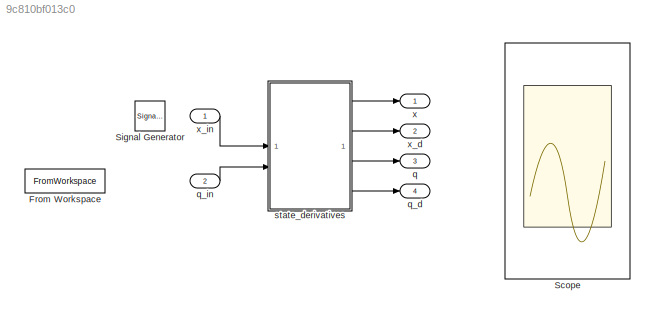
MODEL slx_9c810bf013c0
KIND model
CONFIG AbsTol = auto
CONFIG EnableMultiTasking = off
CONFIG FixedStep = 0.001
CONFIG MaxStep = auto
CONFIG MinStep = auto
CONFIG RelTol = 1e-3
CONFIG SampleTimeConstraint = Unconstrained
CONFIG SolverName = FixedStepDiscrete
CONFIG StartTime = 0.0
CONFIG StopTime = 30
BLOCK [FromWorkspace] From Workspace
  Commented = on
  OutputAfterFinalValue = Holding final value
  SampleTime = 0.001
  VariableName = data_to_simulink
BLOCK [Scope] Scope
  Commented = on
  Floating = off
  NumInputPorts = 4
  ScopeSpecificationString = Simulink.scopes.TimeScopeBlockCfg('CurrentConfiguration', extmgr.ConfigurationSet(extmgr.Configuration('Core','General UI',true,'FigureColor',[1 1 1]),extmgr.Configuration('Core','Source UI',true),extmgr.Configuration('Sources','WiredSimulink',true),extmgr.Configuration('Visuals','Time Domain',true,'SerializedDisplays',{struct('MinYLimReal','-1.125','MaxYLimReal','1.125','YLabelReal','','MinYLimMa...<+3740ch>
BLOCK [SignalGenerator] Signal Generator
  Amplitude = 0.9
  Commented = on
  Frequency = pi
  Units = rad/sec
BLOCK [Outport] q
  Port = 3
BLOCK [Outport] q_d
  Port = 4
BLOCK [Inport] q_in
  Port = 2
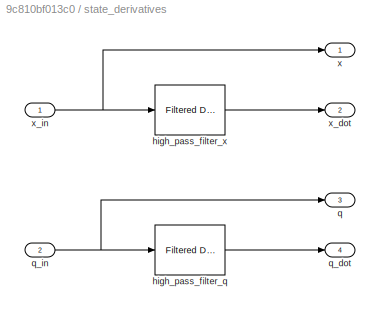
BLOCK [SubSystem] state_derivatives
  SystemSampleTime = 0.001
  TreatAsAtomicUnit = on
BLOCK [Reference] state_derivatives/high_pass_filter_q  REF=eeGeneralControl/Filtered Derivative
(Discrete or Continuous)
  LibrarySourceBlock = ee_sl_lib/General Control/Filtered Derivative\n(Discrete or Continuous)
  SourceBlock = eeGeneralControl/Filtered Derivative\n(Discrete or Continuous)
  SourceType = Filtered Derivative (Discrete or Continuous)
BLOCK [Reference] state_derivatives/high_pass_filter_x  REF=eeGeneralControl/Filtered Derivative
(Discrete or Continuous)
  LibrarySourceBlock = ee_sl_lib/General Control/Filtered Derivative\n(Discrete or Continuous)
  SourceBlock = eeGeneralControl/Filtered Derivative\n(Discrete or Continuous)
  SourceType = Filtered Derivative (Discrete or Continuous)
BLOCK [Outport] state_derivatives/q
  Port = 3
BLOCK [Outport] state_derivatives/q_dot
  Port = 4
BLOCK [Inport] state_derivatives/q_in
  Port = 2
BLOCK [Outport] state_derivatives/x
BLOCK [Outport] state_derivatives/x_dot
  Port = 2
BLOCK [Inport] state_derivatives/x_in
BLOCK [Outport] x
BLOCK [Outport] x_d
  Port = 2
BLOCK [Inport] x_in
LINE q_in:1 -> state_derivatives:2
LINE state_derivatives/high_pass_filter_q:1 -> state_derivatives/q_dot:1
LINE state_derivatives/high_pass_filter_x:1 -> state_derivatives/x_dot:1
NET state_derivatives/q_in:1 -> state_derivatives/high_pass_filter_q:1, state_derivatives/q:1
NET state_derivatives/x_in:1 -> state_derivatives/high_pass_filter_x:1, state_derivatives/x:1
LINE state_derivatives:1 -> x:1
LINE state_derivatives:2 -> x_d:1
LINE state_derivatives:3 -> q:1
LINE state_derivatives:4 -> q_d:1
LINE x_in:1 -> state_derivatives:1
note: NET lines group one-source signal fan-out (src -> all destinations, sorted); 1:1 wires keep LINE
